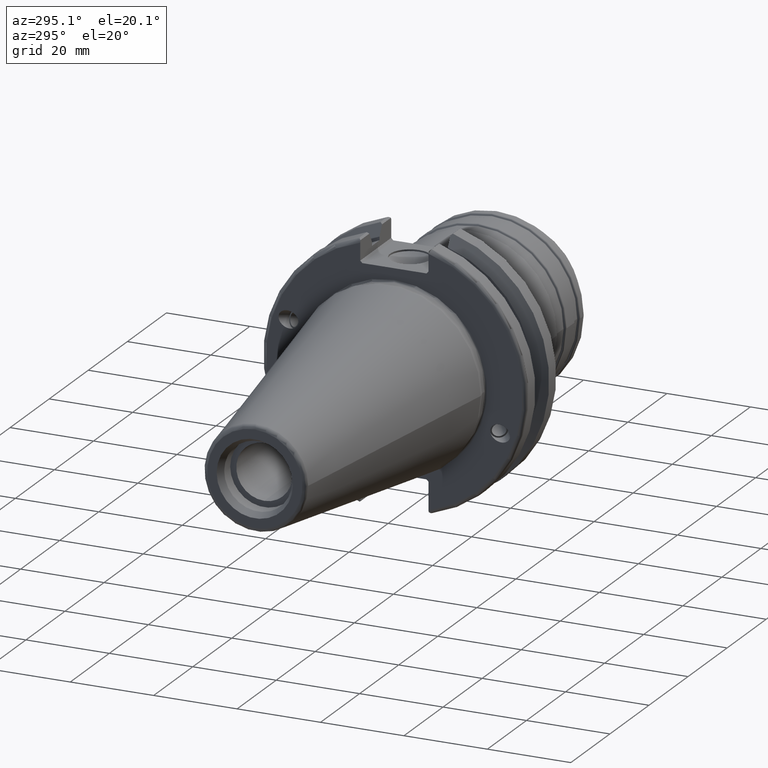
[diagram: clean part render]
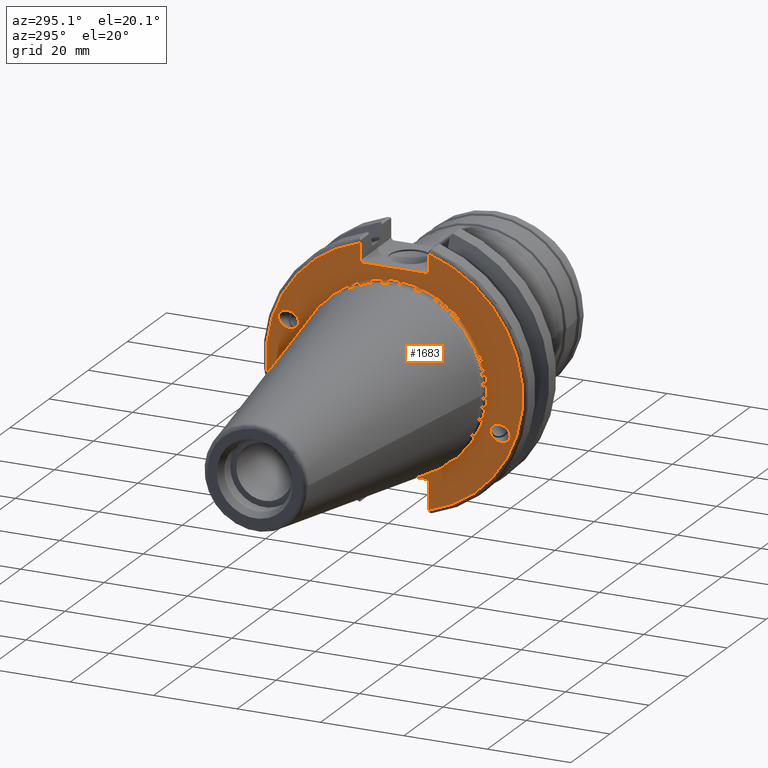
[diagram: same view with one face highlighted and labeled with its STEP entity id]
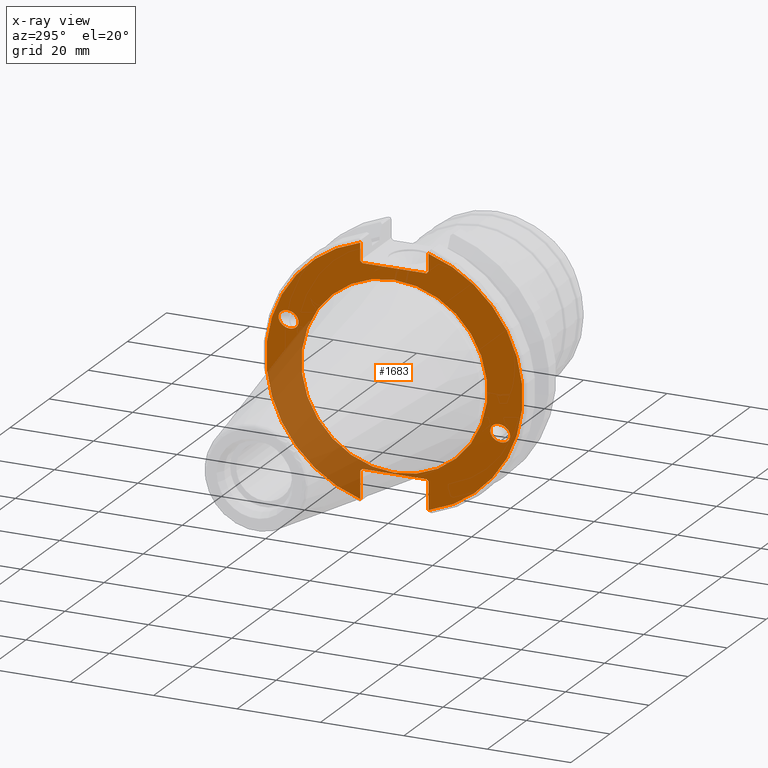
[diagram: x-ray of the same camera — body ghosted, the highlighted face saturated]
A machine part, auxiliary view. The second image highlights one B-rep face of the part: STEP entity #1683.
The next image is the same camera in x-ray: the body ghosted, the highlighted face saturated — about 27% of this face is hidden behind the body in this view.
In plain terms, the highlighted planar face has unit normal (-1, 0, 0).
Its self-contained STEP definition (entity closure, byte-faithful):
#63=FACE_BOUND('',#508,.T.);
#64=FACE_BOUND('',#509,.T.);
#65=FACE_BOUND('',#510,.T.);
#79=ELLIPSE('',#1869,2.44154917752292,2.00000000000001);
#88=ELLIPSE('',#1892,2.44154917752292,2.00000000000001);
#97=PLANE('',#1902);
#177=LINE('',#2922,#269);
#178=LINE('',#2924,#270);
#179=LINE('',#2926,#271);
#180=LINE('',#2928,#272);
#181=LINE('',#2930,#273);
#182=LINE('',#2934,#274);
#183=LINE('',#2936,#275);
#184=LINE('',#2938,#276);
#185=LINE('',#2940,#277);
#186=LINE('',#2941,#278);
#269=VECTOR('',#2321,10.);
#270=VECTOR('',#2322,10.);
#271=VECTOR('',#2323,10.);
#272=VECTOR('',#2324,10.);
#273=VECTOR('',#2325,10.);
#274=VECTOR('',#2328,10.);
#275=VECTOR('',#2329,10.);
#276=VECTOR('',#2330,10.);
#277=VECTOR('',#2331,10.);
#278=VECTOR('',#2332,10.);
#401=FACE_OUTER_BOUND('',#507,.T.);
#507=EDGE_LOOP('',(#1371,#1372,#1373,#1374,#1375,#1376,#1377,#1378,#1379,
#1380,#1381,#1382));
#508=EDGE_LOOP('',(#1383));
#509=EDGE_LOOP('',(#1384));
#510=EDGE_LOOP('',(#1385));
#638=CIRCLE('',#1900,22.3);
#640=CIRCLE('',#1903,30.75);
#641=CIRCLE('',#1904,30.75);
#750=VERTEX_POINT('',#2833);
#763=VERTEX_POINT('',#2898);
#768=VERTEX_POINT('',#2913);
#769=VERTEX_POINT('',#2918);
#770=VERTEX_POINT('',#2919);
#771=VERTEX_POINT('',#2921);
#772=VERTEX_POINT('',#2923);
#773=VERTEX_POINT('',#2925);
#774=VERTEX_POINT('',#2927);
#775=VERTEX_POINT('',#2929);
#776=VERTEX_POINT('',#2931);
#777=VERTEX_POINT('',#2933);
#778=VERTEX_POINT('',#2935);
#779=VERTEX_POINT('',#2937);
#780=VERTEX_POINT('',#2939);
#954=EDGE_CURVE('',#750,#750,#79,.T.);
#976=EDGE_CURVE('',#763,#763,#88,.T.);
#983=EDGE_CURVE('',#768,#768,#638,.T.);
#985=EDGE_CURVE('',#769,#770,#640,.T.);
#986=EDGE_CURVE('',#769,#771,#177,.T.);
#987=EDGE_CURVE('',#772,#771,#178,.T.);
#988=EDGE_CURVE('',#772,#773,#179,.T.);
#989=EDGE_CURVE('',#774,#773,#180,.T.);
#990=EDGE_CURVE('',#774,#775,#181,.T.);
#991=EDGE_CURVE('',#776,#775,#641,.T.);
#992=EDGE_CURVE('',#776,#777,#182,.T.);
#993=EDGE_CURVE('',#778,#777,#183,.T.);
#994=EDGE_CURVE('',#778,#779,#184,.T.);
#995=EDGE_CURVE('',#780,#779,#185,.T.);
#996=EDGE_CURVE('',#780,#770,#186,.T.);
#1371=ORIENTED_EDGE('',*,*,#985,.F.);
#1372=ORIENTED_EDGE('',*,*,#986,.T.);
#1373=ORIENTED_EDGE('',*,*,#987,.F.);
#1374=ORIENTED_EDGE('',*,*,#988,.T.);
#1375=ORIENTED_EDGE('',*,*,#989,.F.);
#1376=ORIENTED_EDGE('',*,*,#990,.T.);
#1377=ORIENTED_EDGE('',*,*,#991,.F.);
#1378=ORIENTED_EDGE('',*,*,#992,.T.);
#1379=ORIENTED_EDGE('',*,*,#993,.F.);
#1380=ORIENTED_EDGE('',*,*,#994,.T.);
#1381=ORIENTED_EDGE('',*,*,#995,.F.);
#1382=ORIENTED_EDGE('',*,*,#996,.T.);
#1383=ORIENTED_EDGE('',*,*,#954,.T.);
#1384=ORIENTED_EDGE('',*,*,#976,.T.);
#1385=ORIENTED_EDGE('',*,*,#983,.F.);
#1683=ADVANCED_FACE('',(#401,#63,#64,#65),#97,.T.);
#1869=AXIS2_PLACEMENT_3D('',#2835,#2242,#2243);
#1892=AXIS2_PLACEMENT_3D('',#2900,#2295,#2296);
#1900=AXIS2_PLACEMENT_3D('',#2915,#2313,#2314);
#1902=AXIS2_PLACEMENT_3D('',#2917,#2317,#2318);
#1903=AXIS2_PLACEMENT_3D('',#2920,#2319,#2320);
#1904=AXIS2_PLACEMENT_3D('',#2932,#2326,#2327);
#2242=DIRECTION('center_axis',(1.,0.,0.));
#2243=DIRECTION('ref_axis',(5.68400912649E-17,-0.939692620785909,-0.342020143325667));
#2295=DIRECTION('center_axis',(1.,0.,0.));
#2296=DIRECTION('ref_axis',(5.68400912649E-17,0.939692620785909,0.342020143325667));
#2313=DIRECTION('center_axis',(-1.,0.,0.));
#2314=DIRECTION('ref_axis',(0.,-1.,1.83697019872103E-16));
#2317=DIRECTION('center_axis',(-1.,0.,0.));
#2318=DIRECTION('ref_axis',(0.,0.,1.));
#2319=DIRECTION('center_axis',(1.,0.,0.));
#2320=DIRECTION('ref_axis',(0.,-1.,1.60812264967664E-16));
#2321=DIRECTION('',(0.,0.,-1.));
#2322=DIRECTION('',(0.,-0.70710678118655,0.707106781186545));
#2323=DIRECTION('',(0.,1.,0.));
#2324=DIRECTION('',(0.,-0.707106781186549,-0.707106781186546));
#2325=DIRECTION('',(0.,0.,1.));
#2326=DIRECTION('center_axis',(1.,0.,0.));
#2327=DIRECTION('ref_axis',(0.,1.,1.60812264967664E-16));
#2328=DIRECTION('',(0.,0.,1.));
#2329=DIRECTION('',(0.,0.707106781186549,-0.707106781186546));
#2330=DIRECTION('',(0.,-1.,0.));
#2331=DIRECTION('',(0.,0.707106781186549,0.707106781186546));
#2332=DIRECTION('',(0.,0.,-1.));
#2833=CARTESIAN_POINT('',(3.175,-23.0773950158153,-8.39948487016));
#2835=CARTESIAN_POINT('Origin',(3.175,-25.3717007612195,-9.23454386979305));
#2898=CARTESIAN_POINT('',(3.175,23.0773950158153,8.39948487016));
#2900=CARTESIAN_POINT('Origin',(3.175,25.3717007612195,9.23454386979306));
#2913=CARTESIAN_POINT('',(3.175,-2.7309623620986E-15,22.3));
#2915=CARTESIAN_POINT('Origin',(3.175,0.,0.));
#2917=CARTESIAN_POINT('Origin',(3.175,31.75,0.));
#2918=CARTESIAN_POINT('',(3.175,-8.18999999999999,29.6392712461019));
#2919=CARTESIAN_POINT('',(3.175,-8.19,-29.6392712461019));
#2920=CARTESIAN_POINT('Origin',(3.175,0.,0.));
#2921=CARTESIAN_POINT('',(3.175,-8.18999999999999,25.5));
#2922=CARTESIAN_POINT('',(3.175,-8.18999999999999,12.5));
#2923=CARTESIAN_POINT('',(3.175,-7.68999999999999,25.));
#2924=CARTESIAN_POINT('',(3.175,8.29500000000007,9.01500000000004));
#2925=CARTESIAN_POINT('',(3.175,7.69,25.));
#2926=CARTESIAN_POINT('',(3.175,15.875,25.));
#2927=CARTESIAN_POINT('',(3.175,8.19,25.5));
#2928=CARTESIAN_POINT('',(3.175,7.58000000000002,24.89));
#2929=CARTESIAN_POINT('',(3.175,8.19,29.6392712461019));
#2930=CARTESIAN_POINT('',(3.175,8.19,12.5));
#2931=CARTESIAN_POINT('',(3.175,8.18999999999999,-29.6392712461019));
#2932=CARTESIAN_POINT('Origin',(3.175,0.,0.));
#2933=CARTESIAN_POINT('',(3.175,8.18999999999999,-23.1));
#2934=CARTESIAN_POINT('',(3.175,8.18999999999999,-11.3));
#2935=CARTESIAN_POINT('',(3.175,7.69,-22.6));
#2936=CARTESIAN_POINT('',(3.175,8.18000000000002,-23.09));
#2937=CARTESIAN_POINT('',(3.175,-7.69,-22.6));
#2938=CARTESIAN_POINT('',(3.175,15.875,-22.6));
#2939=CARTESIAN_POINT('',(3.175,-8.19,-23.1));
#2940=CARTESIAN_POINT('',(3.175,7.69500000000004,-7.21500000000002));
#2941=CARTESIAN_POINT('',(3.175,-8.19,-11.3));